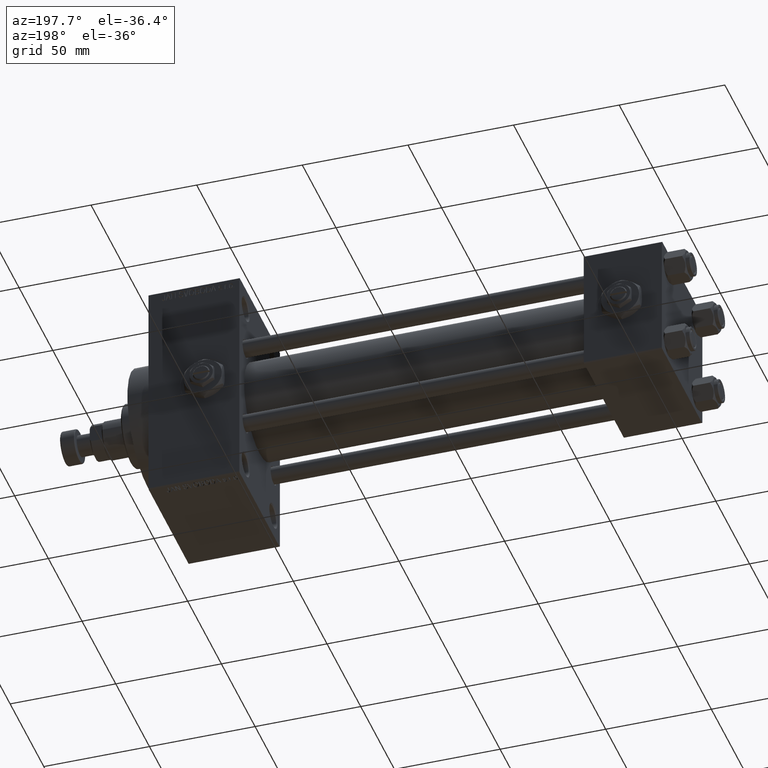
[diagram: clean part render]
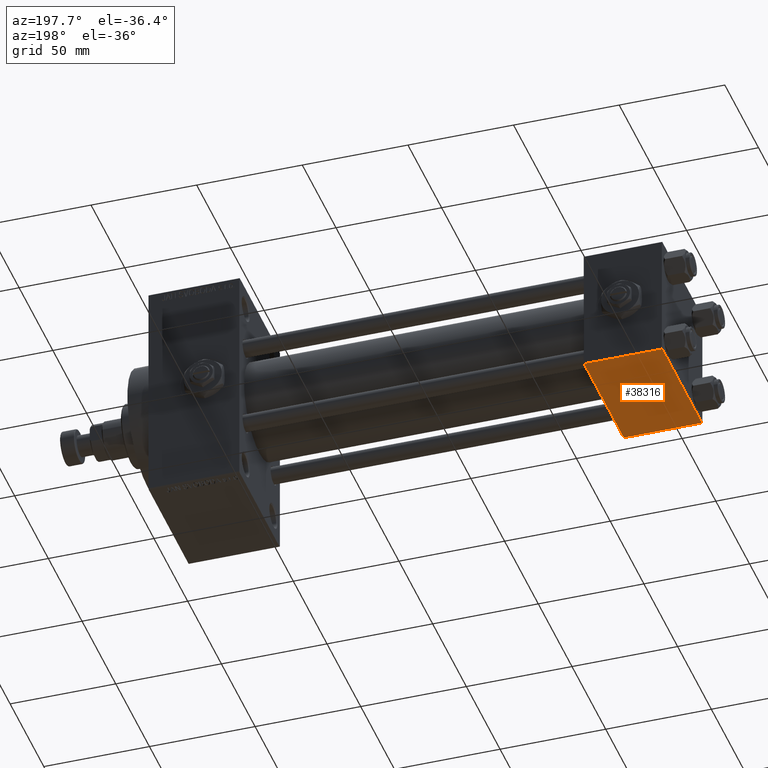
[diagram: same view with one face highlighted and labeled with its STEP entity id]
A machine part, auxiliary view. The second image highlights one B-rep face of the part: STEP entity #38316.
In plain terms, the highlighted planar face has unit normal (0, 0, -1).
Its self-contained STEP definition (entity closure, byte-faithful):
#42 = EDGE_CURVE ( 'NONE', #41359, #317, #6189, .T. ) ;
#317 = VERTEX_POINT ( 'NONE', #17953 ) ;
#1780 = ORIENTED_EDGE ( 'NONE', *, *, #34117, .F. ) ;
#4552 = EDGE_LOOP ( 'NONE', ( #1780, #38786, #33010, #24870 ) ) ;
#6189 = LINE ( 'NONE', #13508, #13706 ) ;
#6547 = EDGE_CURVE ( 'NONE', #30641, #49224, #31588, .T. ) ;
#7965 = DIRECTION ( 'NONE',  ( 0.000000000000000000, -1.000000000000000000, -1.156482317317871725E-16 ) ) ;
#9337 = DIRECTION ( 'NONE',  ( 0.000000000000000000, 1.156482317317871725E-16, -1.000000000000000000 ) ) ;
#9924 = CARTESIAN_POINT ( 'NONE',  ( 0.000000000000000000, -29.50000000000001066, -30.00000000000000711 ) ) ;
#10075 = PLANE ( 'NONE',  #25948 ) ;
#12965 = VECTOR ( 'NONE', #32094, 1000.000000000000000 ) ;
#13508 = CARTESIAN_POINT ( 'NONE',  ( 37.00000000000000000, 29.49999999999997868, -30.00000000000000000 ) ) ;
#13706 = VECTOR ( 'NONE', #37118, 1000.000000000000000 ) ;
#14467 = DIRECTION ( 'NONE',  ( -1.000000000000000000, 0.000000000000000000, 0.000000000000000000 ) ) ;
#17953 = CARTESIAN_POINT ( 'NONE',  ( 37.00000000000000000, 29.49999999999997868, -30.00000000000000000 ) ) ;
#18708 = CARTESIAN_POINT ( 'NONE',  ( 37.00000000000000000, -29.50000000000000000, -30.00000000000000711 ) ) ;
#19550 = CARTESIAN_POINT ( 'NONE',  ( 37.00000000000000000, 29.99999999999999289, -30.00000000000000000 ) ) ;
#24870 = ORIENTED_EDGE ( 'NONE', *, *, #6547, .T. ) ;
#25948 = AXIS2_PLACEMENT_3D ( 'NONE', #32974, #9337, #28943 ) ;
#28943 = DIRECTION ( 'NONE',  ( 0.000000000000000000, 1.000000000000000000, 1.156482317317871725E-16 ) ) ;
#30641 = VERTEX_POINT ( 'NONE', #18708 ) ;
#31588 = LINE ( 'NONE', #9924, #41773 ) ;
#32094 = DIRECTION ( 'NONE',  ( 0.000000000000000000, -1.000000000000000000, -1.156482317317871725E-16 ) ) ;
#32599 = VECTOR ( 'NONE', #7965, 1000.000000000000000 ) ;
#32974 = CARTESIAN_POINT ( 'NONE',  ( 37.00000000000000000, 29.99999999999999289, -30.00000000000000000 ) ) ;
#33010 = ORIENTED_EDGE ( 'NONE', *, *, #46906, .T. ) ;
#34117 = EDGE_CURVE ( 'NONE', #41359, #49224, #43155, .T. ) ;
#35367 = CARTESIAN_POINT ( 'NONE',  ( 0.000000000000000000, 29.99999999999999289, -30.00000000000000000 ) ) ;
#37118 = DIRECTION ( 'NONE',  ( 1.000000000000000000, 0.000000000000000000, 0.000000000000000000 ) ) ;
#38316 = ADVANCED_FACE ( 'NONE', ( #43537 ), #10075, .T. ) ;
#38786 = ORIENTED_EDGE ( 'NONE', *, *, #42, .T. ) ;
#41359 = VERTEX_POINT ( 'NONE', #48179 ) ;
#41773 = VECTOR ( 'NONE', #14467, 1000.000000000000000 ) ;
#43155 = LINE ( 'NONE', #35367, #12965 ) ;
#43398 = LINE ( 'NONE', #19550, #32599 ) ;
#43537 = FACE_OUTER_BOUND ( 'NONE', #4552, .T. ) ;
#45426 = CARTESIAN_POINT ( 'NONE',  ( 0.000000000000000000, -29.50000000000000000, -30.00000000000000711 ) ) ;
#46906 = EDGE_CURVE ( 'NONE', #317, #30641, #43398, .T. ) ;
#48179 = CARTESIAN_POINT ( 'NONE',  ( 0.000000000000000000, 29.49999999999997868, -30.00000000000000000 ) ) ;
#49224 = VERTEX_POINT ( 'NONE', #45426 ) ;